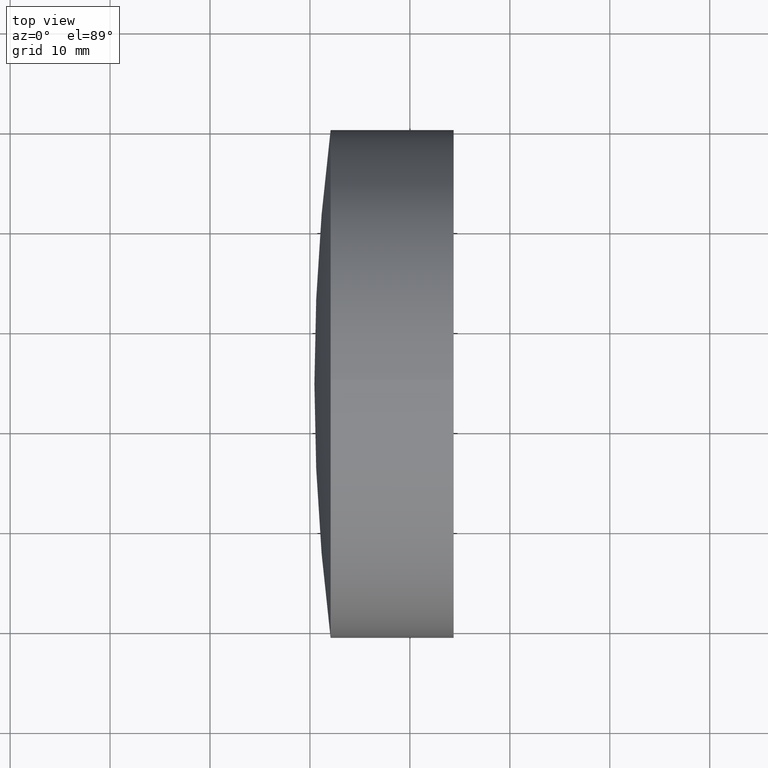
[diagram: clean part render]
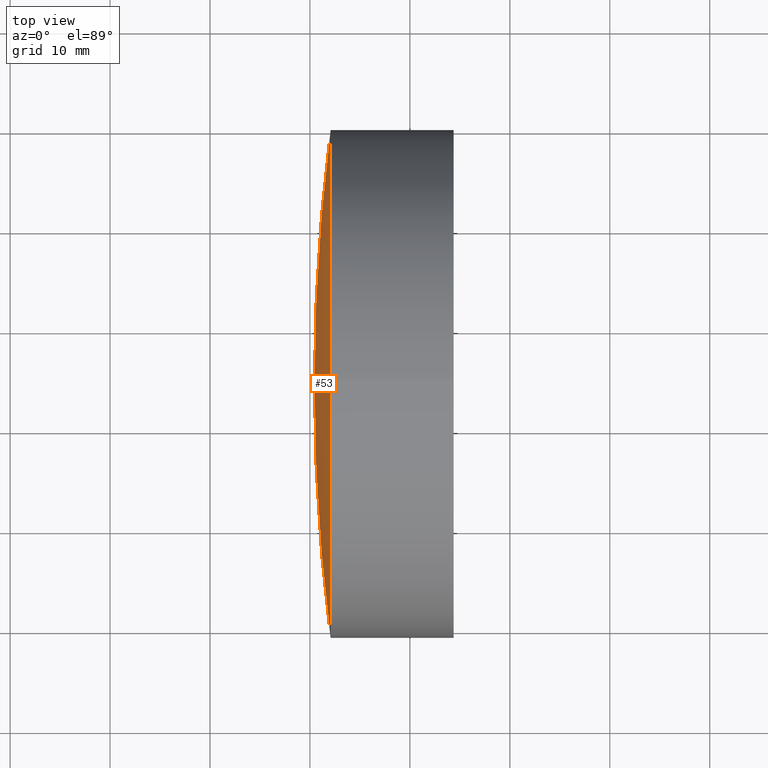
[diagram: same view with one face highlighted and labeled with its STEP entity id]
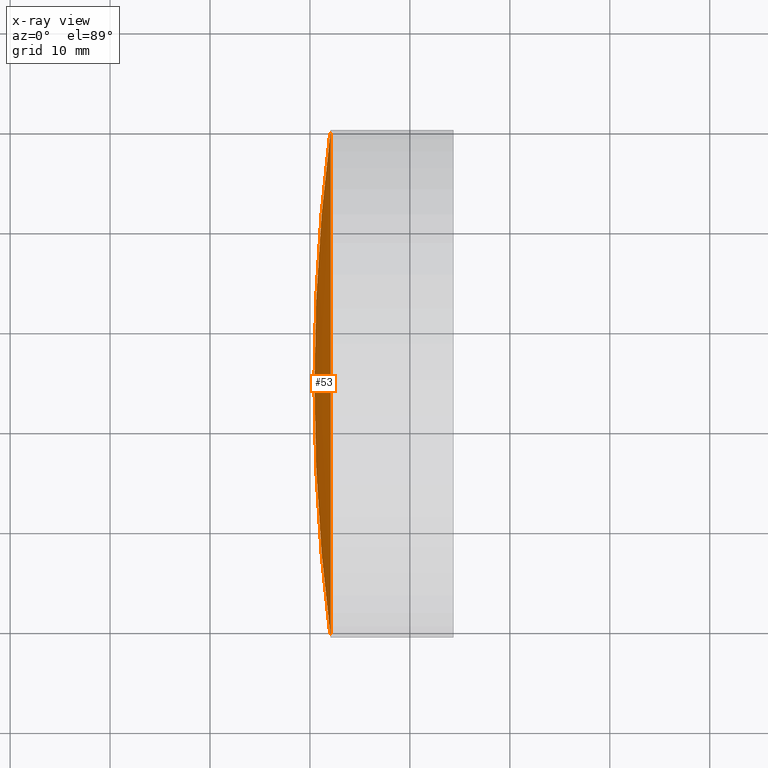
[diagram: x-ray of the same camera — body ghosted, the highlighted face saturated]
A machine part, top view. The second image highlights one B-rep face of the part: STEP entity #53.
The next image is the same camera in x-ray: the body ghosted, the highlighted face saturated — about 0% of this face is hidden behind the body in this view.
In plain terms, the highlighted spherical surface has radius 200 mm.
Its self-contained STEP definition (entity closure, byte-faithful):
#27 = ORIENTED_EDGE ( 'NONE', *, *, #28, .F. ) ;
#28 = EDGE_CURVE ( 'NONE', #29, #40, #124, .T. ) ;
#29 = VERTEX_POINT ( 'NONE', #177 ) ;
#30 = ORIENTED_EDGE ( 'NONE', *, *, #31, .T. ) ;
#31 = EDGE_CURVE ( 'NONE', #29, #32, #176, .T. ) ;
#32 = VERTEX_POINT ( 'NONE', #171 ) ;
#33 = ORIENTED_EDGE ( 'NONE', *, *, #34, .F. ) ;
#34 = EDGE_CURVE ( 'NONE', #41, #32, #169, .T. ) ;
#35 = ORIENTED_EDGE ( 'NONE', *, *, #39, .F. ) ;
#39 = EDGE_CURVE ( 'NONE', #40, #41, #200, .T. ) ;
#40 = VERTEX_POINT ( 'NONE', #195 ) ;
#41 = VERTEX_POINT ( 'NONE', #194 ) ;
#53 = ADVANCED_FACE ( 'NONE', ( #226 ), #269, .T. ) ;
#54 = EDGE_LOOP ( 'NONE', ( #27, #30, #33, #35 ) ) ;
#124 = CIRCLE ( 'NONE', #181, 7.874015748031496300 ) ;
#165 = DIRECTION ( 'NONE',  ( 0.0000000000000000000, 0.0000000000000000000, -1.000000000000000000 ) ) ;
#166 = DIRECTION ( 'NONE',  ( 1.000000000000000000, 0.0000000000000000000, 0.0000000000000000000 ) ) ;
#167 = CARTESIAN_POINT ( 'NONE',  ( -3.462008789174868500, 1.358932922870714100, 0.8722530675037537500 ) ) ;
#168 = AXIS2_PLACEMENT_3D ( 'NONE', #167, #166, #165 ) ;
#169 = CIRCLE ( 'NONE', #168, 1.000000000000001300 ) ;
#171 = CARTESIAN_POINT ( 'NONE',  ( -3.462008789174868500, 0.3589329228707141600, 0.8722530675037538600 ) ) ;
#172 = DIRECTION ( 'NONE',  ( 0.0000000000000000000, -1.000000000000000000, 1.214306433183764700E-016 ) ) ;
#173 = DIRECTION ( 'NONE',  ( 0.0000000000000000000, 1.224606353822377300E-016, 1.000000000000000000 ) ) ;
#174 = CARTESIAN_POINT ( 'NONE',  ( 4.348248825030185400, 1.358932922870714100, 0.8722530675037537500 ) ) ;
#175 = AXIS2_PLACEMENT_3D ( 'NONE', #174, #173, #172 ) ;
#176 = CIRCLE ( 'NONE', #175, 7.874015748031496300 ) ;
#177 = CARTESIAN_POINT ( 'NONE',  ( -3.525766923001311800, 1.358932922870714800, 0.8722530675037537500 ) ) ;
#178 = DIRECTION ( 'NONE',  ( -1.000000000000000000, 0.0000000000000000000, 0.0000000000000000000 ) ) ;
#179 = DIRECTION ( 'NONE',  ( 0.0000000000000000000, 0.0000000000000000000, -1.000000000000000000 ) ) ;
#180 = CARTESIAN_POINT ( 'NONE',  ( 4.348248825030185400, 1.358932922870714100, 0.8722530675037537500 ) ) ;
#181 = AXIS2_PLACEMENT_3D ( 'NONE', #180, #179, #178 ) ;
#194 = CARTESIAN_POINT ( 'NONE',  ( -3.462008789174868500, 1.358932922870714100, 1.872253067503755000 ) ) ;
#195 = CARTESIAN_POINT ( 'NONE',  ( -3.462008789174867700, 2.358932922870714300, 0.8722530675037537500 ) ) ;
#196 = DIRECTION ( 'NONE',  ( 0.0000000000000000000, 0.0000000000000000000, -1.000000000000000000 ) ) ;
#197 = DIRECTION ( 'NONE',  ( 1.000000000000000000, 0.0000000000000000000, 0.0000000000000000000 ) ) ;
#198 = CARTESIAN_POINT ( 'NONE',  ( -3.462008789174868500, 1.358932922870714100, 0.8722530675037537500 ) ) ;
#199 = AXIS2_PLACEMENT_3D ( 'NONE', #198, #197, #196 ) ;
#200 = CIRCLE ( 'NONE', #199, 1.000000000000001300 ) ;
#226 = FACE_OUTER_BOUND ( 'NONE', #54, .T. ) ;
#266 = DIRECTION ( 'NONE',  ( 0.0000000000000000000, 1.000000000000000000, 0.0000000000000000000 ) ) ;
#267 = DIRECTION ( 'NONE',  ( 0.0000000000000000000, 0.0000000000000000000, 1.000000000000000000 ) ) ;
#268 = AXIS2_PLACEMENT_3D ( 'NONE', #270, #267, #266 ) ;
#269 = SPHERICAL_SURFACE ( 'NONE', #268, 7.874015748031496300 ) ;
#270 = CARTESIAN_POINT ( 'NONE',  ( 4.348248825030185400, 1.358932922870714100, 0.8722530675037537500 ) ) ;